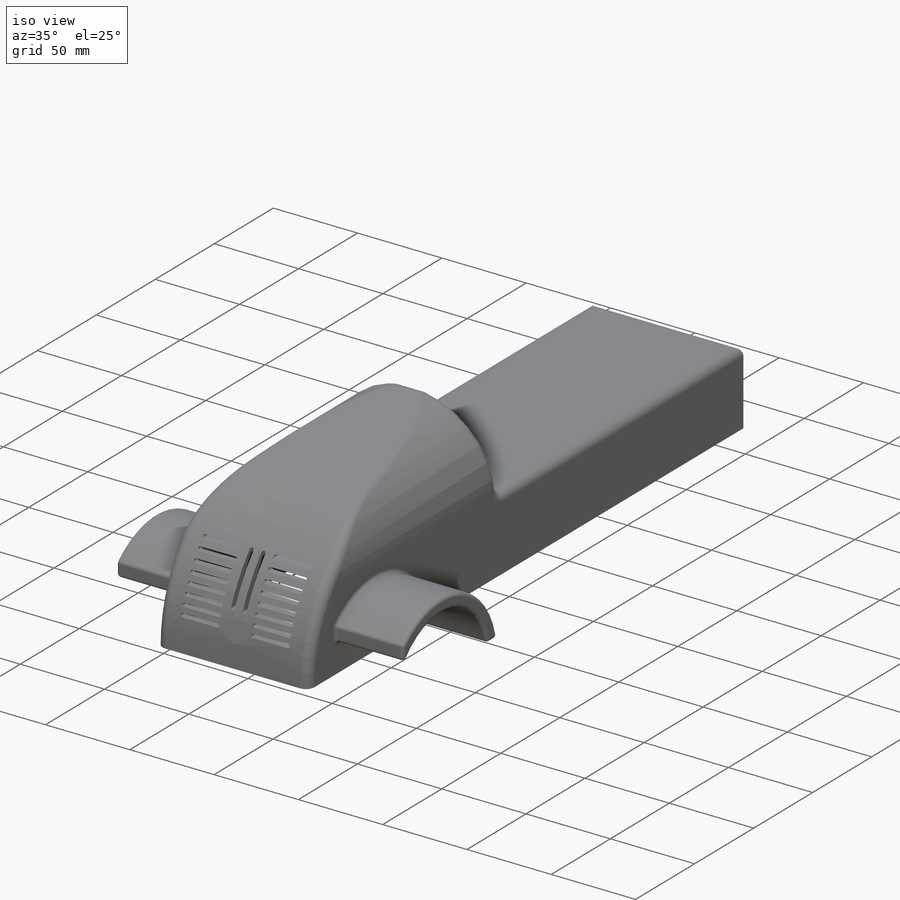
[diagram: iso view]
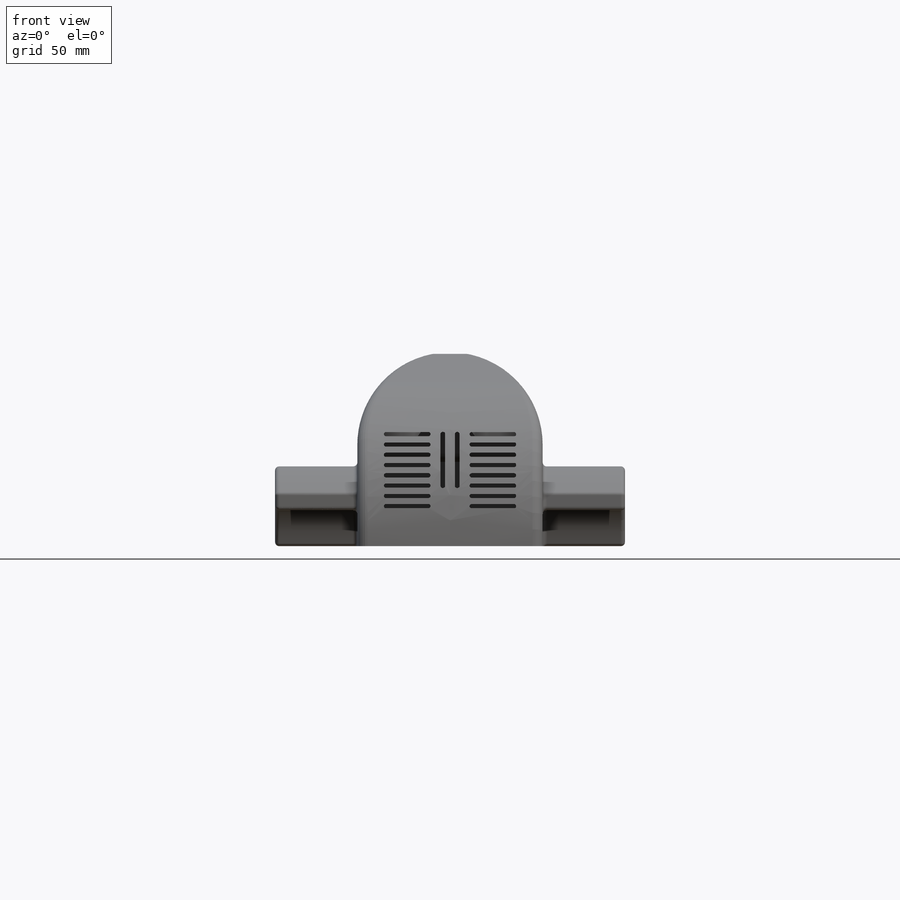
[diagram: front view]
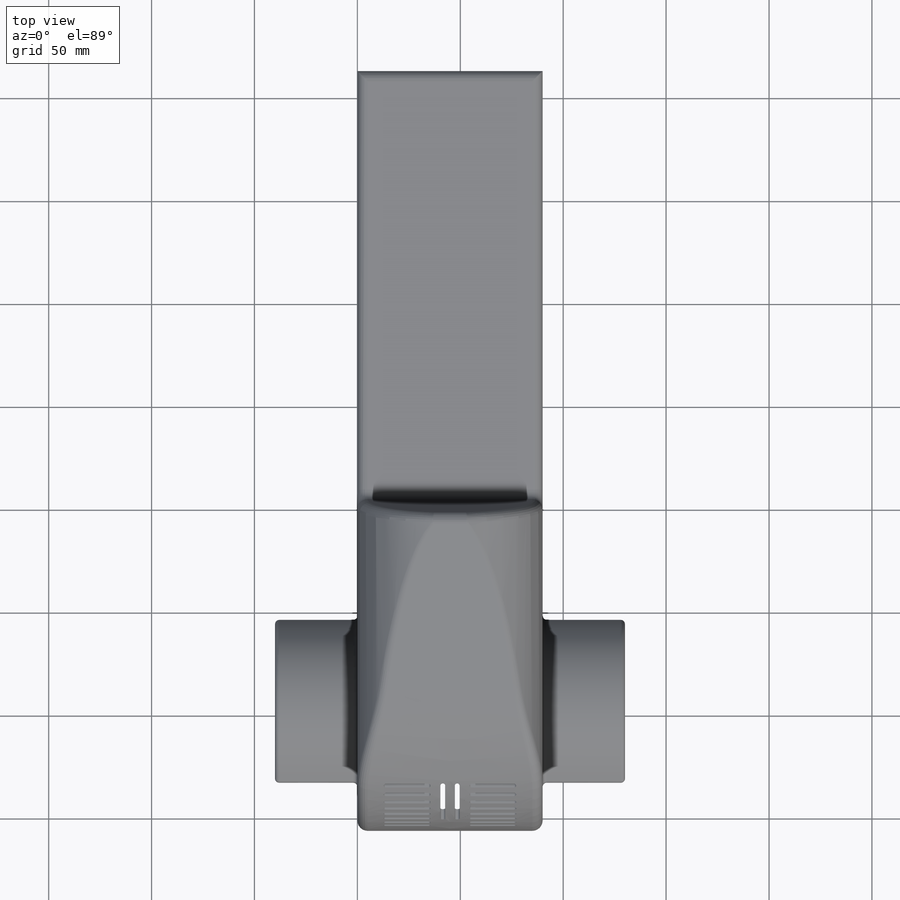
[diagram: top view]
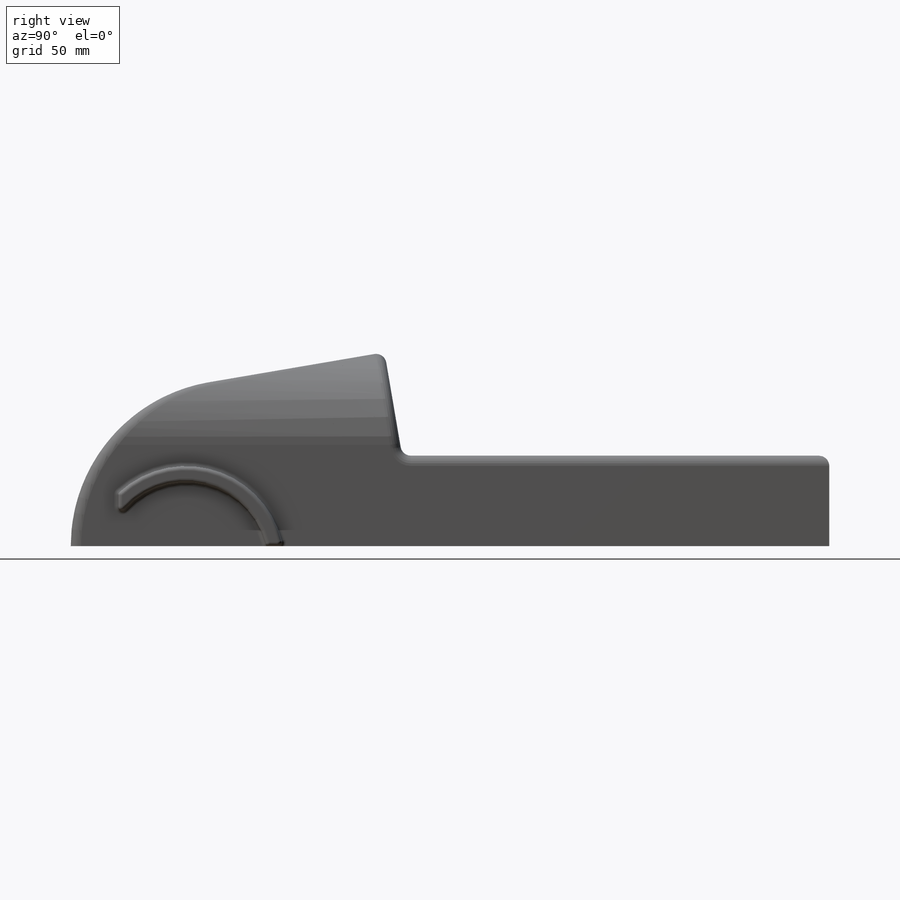
[diagram: right view]
SOLIDWORKS PART (.sldprt)
format: sldprt  version: not decoded by parser v0  size: 981,504 bytes
history: native  units: mm
features: sketch x12, cut_extrude x8, fillet x7, extrude x2, plane x2, material x1 (+12 scaffold rows collapsed)
feature tree (44):
  scaffold x12  (default folders/planes/origin — collapsed)
  material  "Material <not specified>"
  sketch  "Sketch1"  dims[c1.D1=60.0mm c1.D2=150.0mm c1.D3=200.0mm c1.D4=~94.19087mm c2.D4=90.0deg]
  extrude  "Boss-Extrude2"  Depth=90mm
  sketch  "Sketch2"  dims[c1.D6=~78.594279mm c1.D1=3.0mm c1.D2=3.0mm c1.D3=3.0mm c1.D4=30.0mm c1.D5=3.0mm c2.D6=3.0mm]
  cut_extrude  "Cut-Extrude7"  Depth=84mm
  plane  "Plane5"
  sketch  "Sketch12"  dims[D1=45.0mm D2=45.0mm]
  cut_extrude  "Cut-Extrude13"  [1 undecoded]
  sketch  "Sketch18"  dims[D1=9.0mm D2=8.0mm D3=12.0mm D4=56.0mm]
  extrude  "Boss-Extrude3"  Depth=170mm
  fillet  "Fillet5"  Radius=2mm
  fillet  "Fillet6"  Radius=2mm
  sketch  "Sketch20"
  cut_extrude  "Cut-Extrude14"  Depth=39mm
  fillet  "Fillet7"  Radius=2mm
  fillet  "Fillet8"  Radius=2mm
  fillet  "Fillet9"  Radius=5mm
  fillet  "Fillet10"  Radius=5mm
  plane  "Plane6"
  sketch  "Sketch21"  dims[c1.D1=~1.353542mm c1.D11=~2.043431mm c2.D1=33.0mm c2.D2=33.0mm c2.D3=7.0mm c3.D1=36.5mm c3.D2=36.5mm c3.D4=5.0mm c3.D5=5.0mm c3.D6=5.0mm c3.D7=5.0mm c3.D8=5.0mm c3.D9=5.0mm c3.D10=5.0mm c3.D11=7.0mm c3.D12=7.0mm c3.D13=7.0mm c3.D14=7.0mm c3.D15=7.0mm c3.D16=7.0mm c3.D17=7.0mm c3.D18=7.0mm c3.D20=~7.00091mm c3.D21=25.0mm c3.D19=2.0]
  cut_extrude  "Cut-Extrude15"  Depth=50mm
  fillet  "Fillet11"  Radius=5mm
  sketch  "Sketch24"
  cut_extrude  "Cut-Extrude17"  Depth=20mm
  sketch  "Sketch25"
  cut_extrude  "Cut-Extrude18"  Depth=30mm
  sketch  "Sketch27"
  cut_extrude  "Cut-Extrude19"  Depth=110mm
  sketch  "Sketch29"
  sketch  "3DSketch6"
  cut_extrude  "Cut-Extrude21"  Depth=110mm
  sketch  "3DSketch8"
decode coverage: 21 of 29 modeling features carry decoded parameters
note: ~ marks probable driven/reference dimensions
note: 1 parameter value undecoded
note: suppression state not decoded; provenance and decode notes live in map.json
